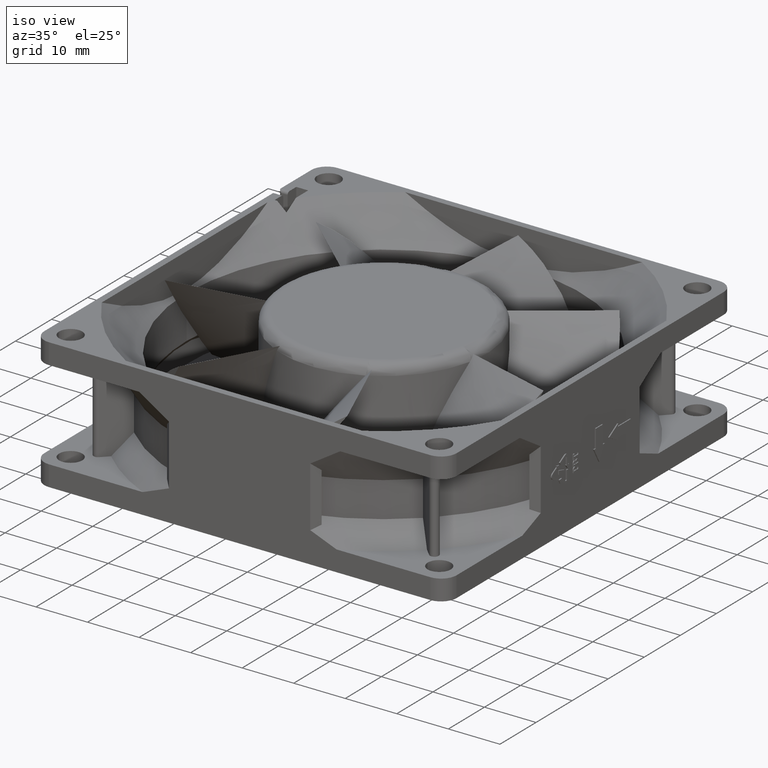
[diagram: clean part render]
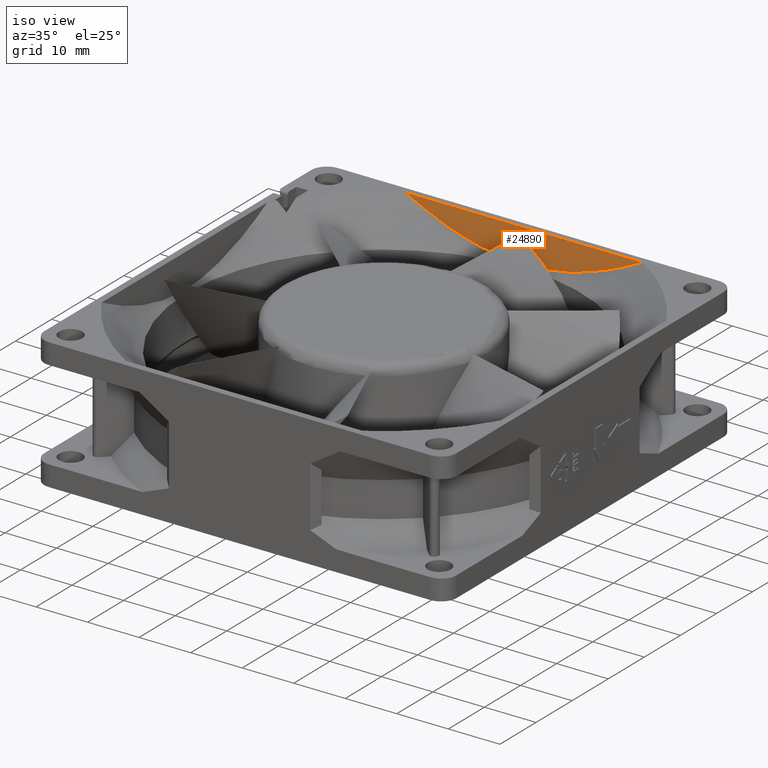
[diagram: same view with one face highlighted and labeled with its STEP entity id]
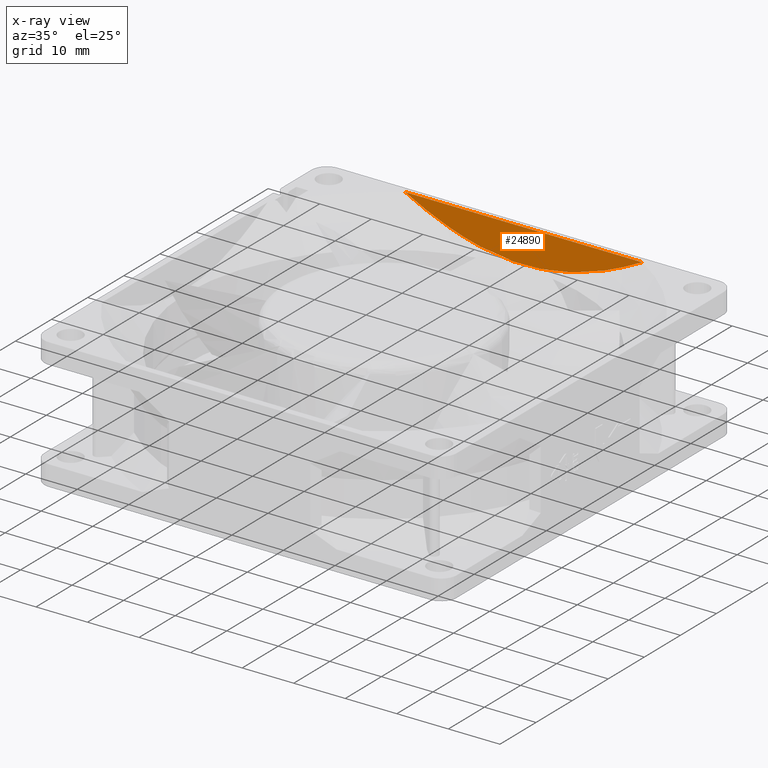
[diagram: x-ray of the same camera — body ghosted, the highlighted face saturated]
A machine part, iso view. The second image highlights one B-rep face of the part: STEP entity #24890.
The next image is the same camera in x-ray: the body ghosted, the highlighted face saturated — about 0% of this face is hidden behind the body in this view.
In plain terms, the highlighted planar face has unit normal (0, 1, 0).
Its self-contained STEP definition (entity closure, byte-faithful):
#5111=DIRECTION('',(1.E0,0.E0,0.E0));
#5112=VECTOR('',#5111,4.592646295982E1);
#5113=CARTESIAN_POINT('',(-2.296323147991E1,3.87E1,0.E0));
#5114=LINE('',#5113,#5112);
#5183=CARTESIAN_POINT('',(2.296323147991E1,3.87E1,0.E0));
#5184=CARTESIAN_POINT('',(2.147587218235E1,3.87E1,-7.929752268870E-1));
#5185=CARTESIAN_POINT('',(1.854821507871E1,3.87E1,-2.240007036456E0));
#5186=CARTESIAN_POINT('',(1.428000032848E1,3.87E1,-3.982579500909E0));
#5187=CARTESIAN_POINT('',(1.016136918120E1,3.87E1,-5.279448216312E0));
#5188=CARTESIAN_POINT('',(6.090311705659E0,3.87E1,-6.157023027132E0));
#5189=CARTESIAN_POINT('',(2.002611326585E0,3.87E1,-6.601661744027E0));
#5190=CARTESIAN_POINT('',(-2.001348030008E0,3.87E1,-6.599590946992E0));
#5191=CARTESIAN_POINT('',(-6.029135101340E0,3.87E1,-6.166645988751E0));
#5192=CARTESIAN_POINT('',(-1.014805181673E1,3.87E1,-5.284934145946E0));
#5193=CARTESIAN_POINT('',(-1.429374710849E1,3.87E1,-3.977241879547E0));
#5194=CARTESIAN_POINT('',(-1.852211586760E1,3.87E1,-2.251167826089E0));
#5195=CARTESIAN_POINT('',(-2.146548013137E1,3.87E1,-7.985156763214E-1));
#5196=CARTESIAN_POINT('',(-2.296323147991E1,3.87E1,0.E0));
#12067=CARTESIAN_POINT('',(-2.296323147991E1,3.87E1,0.E0));
#12068=CARTESIAN_POINT('',(2.296323147991E1,3.87E1,0.E0));
#12069=VERTEX_POINT('',#12067);
#12070=VERTEX_POINT('',#12068);
#24881=CARTESIAN_POINT('',(-3.87E1,3.87E1,-2.54E1));
#24882=DIRECTION('',(0.E0,1.E0,0.E0));
#24883=DIRECTION('',(0.E0,0.E0,1.E0));
#24884=AXIS2_PLACEMENT_3D('',#24881,#24882,#24883);
#24885=PLANE('',#24884);
#24886=ORIENTED_EDGE('',*,*,#24579,.T.);
#24887=ORIENTED_EDGE('',*,*,#24623,.T.);
#24888=EDGE_LOOP('',(#24886,#24887));
#24889=FACE_OUTER_BOUND('',#24888,.F.);
#24890=ADVANCED_FACE('',(#24889),#24885,.F.);
#5197=B_SPLINE_CURVE_WITH_KNOTS('',3,(#5183,#5184,#5185,#5186,#5187,#5188,#5189,
#5190,#5191,#5192,#5193,#5194,#5195,#5196),.UNSPECIFIED.,.F.,.F.,(4,1,1,1,1,1,1,
1,1,1,1,4),(0.E0,9.090909090909E-2,1.818181818182E-1,2.727272727273E-1,
3.636363636364E-1,4.545454545455E-1,5.454545454545E-1,6.363636363636E-1,
7.272727272727E-1,8.181818181818E-1,9.090909090909E-1,1.E0),.UNSPECIFIED.);
#24579=EDGE_CURVE('',#12069,#12070,#5114,.T.);
#24623=EDGE_CURVE('',#12070,#12069,#5197,.T.);